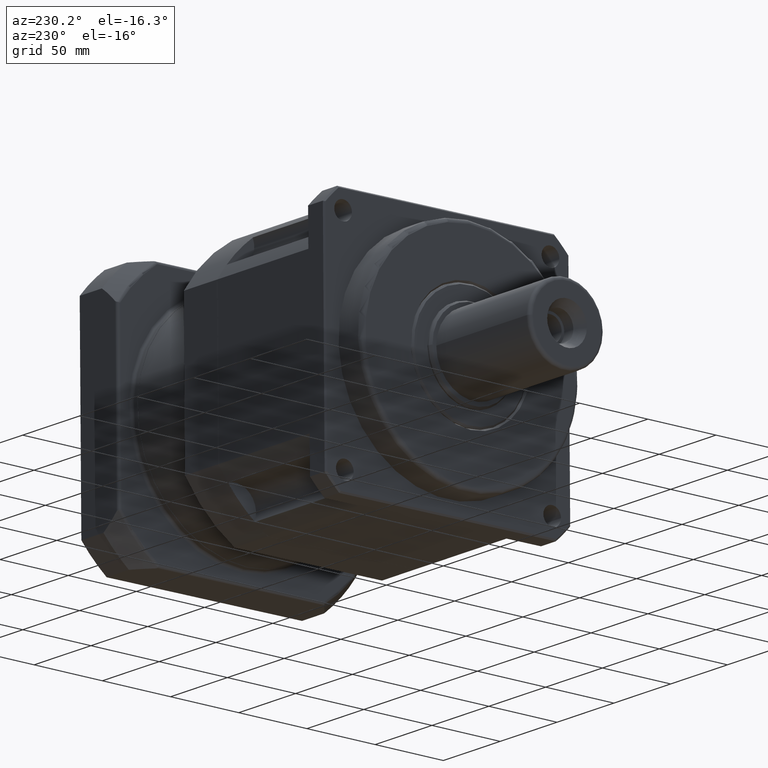
[diagram: clean part render]
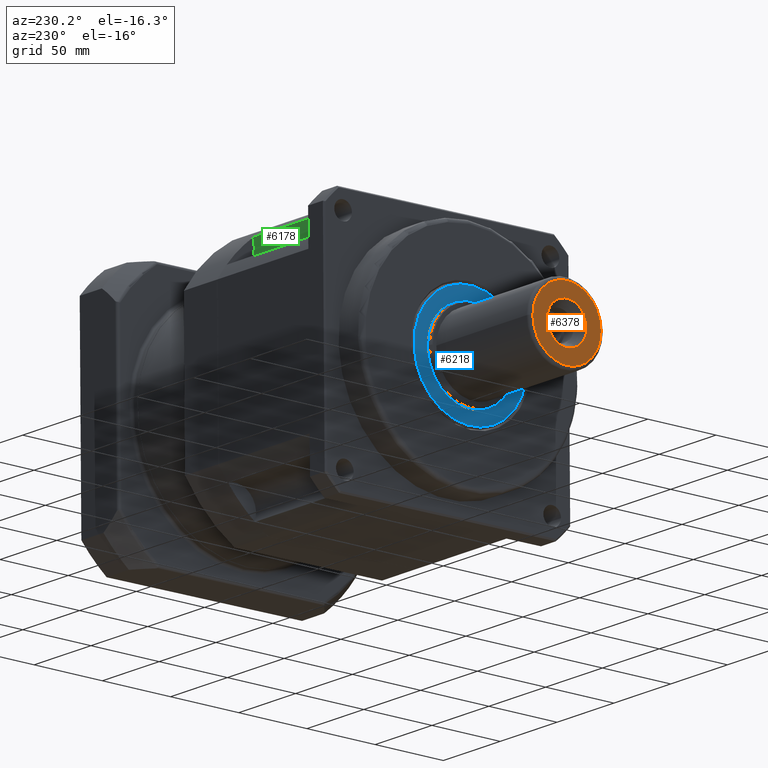
[diagram: same view with three faces highlighted in distinct colors, each labeled with its STEP entity id]
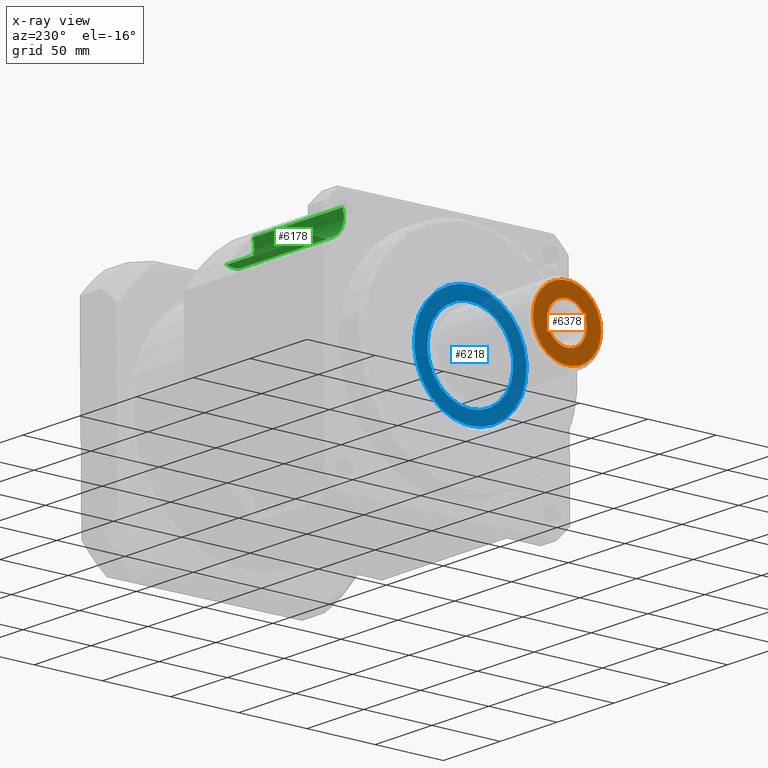
[diagram: x-ray of the same camera — body ghosted, the three highlighted faces saturated]
A machine part, auxiliary view with three faces highlighted in distinct colors.
The next image is the same camera in x-ray (body ghosted, the three faces saturated) — at least one of them is partly hidden behind the body in this view.
Their STEP definitions:

[orange] entity #6378 — the highlighted planar face has unit normal (-1, 0, 0).
#1075=PLANE('',#7129);
#1244=FACE_BOUND('',#2229,.T.);
#1654=FACE_OUTER_BOUND('',#2228,.T.);
#2228=EDGE_LOOP('',(#5524));
#2229=EDGE_LOOP('',(#5525));
#2602=CIRCLE('',#7116,14.5414518843274);
#2609=CIRCLE('',#7130,25.);
#3170=VERTEX_POINT('',#11329);
#3177=VERTEX_POINT('',#11350);
#3965=EDGE_CURVE('',#3170,#3170,#2602,.T.);
#3972=EDGE_CURVE('',#3177,#3177,#2609,.T.);
#5524=ORIENTED_EDGE('',*,*,#3972,.F.);
#5525=ORIENTED_EDGE('',*,*,#3965,.T.);
#6378=ADVANCED_FACE('',(#1654,#1244),#1075,.T.);
#7116=AXIS2_PLACEMENT_3D('',#11330,#8874,#8875);
#7129=AXIS2_PLACEMENT_3D('',#11349,#8900,#8901);
#7130=AXIS2_PLACEMENT_3D('',#11351,#8902,#8903);
#8874=DIRECTION('center_axis',(1.,-3.63673752035064E-47,-3.34871148441438E-16));
#8875=DIRECTION('ref_axis',(-3.34871148441438E-16,-2.64405559680501E-31,
-1.));
#8900=DIRECTION('center_axis',(-1.,3.63673752035064E-47,3.34871148441438E-16));
#8901=DIRECTION('ref_axis',(0.,0.,1.));
#8902=DIRECTION('center_axis',(1.,-3.63673752035064E-47,-3.34871148441438E-16));
#8903=DIRECTION('ref_axis',(6.15148320098408E-32,-1.,1.83697019872103E-16));
#11329=CARTESIAN_POINT('',(-264.697071512776,-138.894963504095,49.1925268064303));
#11330=CARTESIAN_POINT('Origin',(-264.697071512776,-153.436415388422,49.1925268064303));
#11349=CARTESIAN_POINT('Origin',(-264.697071512776,-125.936415388422,49.1925268064303));
#11350=CARTESIAN_POINT('',(-264.697071512776,-128.436415388422,49.1925268064303));
#11351=CARTESIAN_POINT('Origin',(-264.697071512776,-153.436415388422,49.1925268064303));

[blue] entity #6218 — the highlighted planar face has unit normal (-1, -0, 0).
#1000=PLANE('',#6847);
#1167=FACE_BOUND('',#1992,.T.);
#1494=FACE_OUTER_BOUND('',#1991,.T.);
#1991=EDGE_LOOP('',(#4928));
#1992=EDGE_LOOP('',(#4929));
#2487=CIRCLE('',#6848,41.3);
#2488=CIRCLE('',#6849,31.5);
#2978=VERTEX_POINT('',#10325);
#2979=VERTEX_POINT('',#10327);
#3687=EDGE_CURVE('',#2978,#2978,#2487,.T.);
#3688=EDGE_CURVE('',#2979,#2979,#2488,.T.);
#4928=ORIENTED_EDGE('',*,*,#3687,.F.);
#4929=ORIENTED_EDGE('',*,*,#3688,.T.);
#6218=ADVANCED_FACE('',(#1494,#1167),#1000,.T.);
#6847=AXIS2_PLACEMENT_3D('',#10324,#8238,#8239);
#6848=AXIS2_PLACEMENT_3D('',#10326,#8240,#8241);
#6849=AXIS2_PLACEMENT_3D('',#10328,#8242,#8243);
#8238=DIRECTION('center_axis',(-1.,-3.65928595145498E-16,5.37744503565102E-16));
#8239=DIRECTION('ref_axis',(0.,0.0595471144220795,0.998225496150045));
#8240=DIRECTION('center_axis',(1.,3.65928595145498E-16,-5.37744503565102E-16));
#8241=DIRECTION('ref_axis',(3.9730038692824E-16,-0.998225496150045,0.0595471144220797));
#8242=DIRECTION('center_axis',(1.,3.65928595145498E-16,-5.37744503565102E-16));
#8243=DIRECTION('ref_axis',(-5.15000281947794E-16,-0.0595471144220796,-0.998225496150045));
#10324=CARTESIAN_POINT('Origin',(-179.697071512776,-111.011831802045,46.6617744434918));
#10325=CARTESIAN_POINT('',(-179.697071512776,-112.209702397425,46.7332309807983));
#10326=CARTESIAN_POINT('Origin',(-179.697071512776,-153.436415388422,49.1925268064302));
#10327=CARTESIAN_POINT('',(-179.697071512776,-121.992312259696,47.3167927021347));
#10328=CARTESIAN_POINT('Origin',(-179.697071512776,-153.436415388422,49.1925268064302));

[green] entity #6178 — the highlighted cylindrical surface (edge-blend (fillet) strip) has radius 15 mm, axis along (-1, -0, 0).
#355=LINE('',#10041,#659);
#365=LINE('',#10108,#669);
#659=VECTOR('',#7978,79.);
#669=VECTOR('',#8046,79.);
#1454=FACE_OUTER_BOUND('',#1933,.T.);
#1933=EDGE_LOOP('',(#4758,#4759,#4760,#4761,#4762,#4763));
#2456=CIRCLE('',#6777,15.);
#2457=CIRCLE('',#6778,15.);
#2458=CIRCLE('',#6779,15.);
#2459=CIRCLE('',#6780,15.);
#2904=VERTEX_POINT('',#10039);
#2905=VERTEX_POINT('',#10040);
#2932=VERTEX_POINT('',#10106);
#2933=VERTEX_POINT('',#10107);
#2939=VERTEX_POINT('',#10129);
#2940=VERTEX_POINT('',#10131);
#3573=EDGE_CURVE('',#2904,#2905,#355,.T.);
#3605=EDGE_CURVE('',#2932,#2933,#365,.T.);
#3617=EDGE_CURVE('',#2904,#2933,#2456,.T.);
#3618=EDGE_CURVE('',#2939,#2932,#2457,.T.);
#3619=EDGE_CURVE('',#2940,#2939,#2458,.T.);
#3620=EDGE_CURVE('',#2905,#2940,#2459,.T.);
#4758=ORIENTED_EDGE('',*,*,#3573,.F.);
#4759=ORIENTED_EDGE('',*,*,#3617,.T.);
#4760=ORIENTED_EDGE('',*,*,#3605,.F.);
#4761=ORIENTED_EDGE('',*,*,#3618,.F.);
#4762=ORIENTED_EDGE('',*,*,#3619,.F.);
#4763=ORIENTED_EDGE('',*,*,#3620,.F.);
#5646=CYLINDRICAL_SURFACE('',#6776,15.);
#6178=ADVANCED_FACE('',(#1454),#5646,.F.);
#6776=AXIS2_PLACEMENT_3D('',#10127,#8073,#8074);
#6777=AXIS2_PLACEMENT_3D('',#10128,#8075,#8076);
#6778=AXIS2_PLACEMENT_3D('',#10130,#8077,#8078);
#6779=AXIS2_PLACEMENT_3D('',#10132,#8079,#8080);
#6780=AXIS2_PLACEMENT_3D('',#10133,#8081,#8082);
#7978=DIRECTION('',(1.,1.93538914479471E-16,-4.65376321555618E-16));
#8046=DIRECTION('',(-1.,-1.93538914479471E-16,4.65376321555618E-16));
#8073=DIRECTION('center_axis',(-1.,-1.93538914479471E-16,4.65376321555618E-16));
#8074=DIRECTION('ref_axis',(-1.97448203049254E-16,0.999964593271464,-0.00841499871866819));
#8075=DIRECTION('center_axis',(-1.,-1.93538914479471E-16,4.65376321555618E-16));
#8076=DIRECTION('ref_axis',(-1.97448203049254E-16,0.999964593271464,-0.00841499871866819));
#8077=DIRECTION('center_axis',(-1.,-1.93538914479471E-16,4.65376321555618E-16));
#8078=DIRECTION('ref_axis',(-1.97448203049254E-16,0.999964593271464,-0.00841499871866819));
#8079=DIRECTION('center_axis',(-1.,-1.93538914479471E-16,4.65376321555618E-16));
#8080=DIRECTION('ref_axis',(-1.97448203049254E-16,0.999964593271464,-0.00841499871866819));
#8081=DIRECTION('center_axis',(-1.,-1.93538914479471E-16,4.65376321555618E-16));
#8082=DIRECTION('ref_axis',(-1.97448203049254E-16,0.999964593271464,-0.00841499871866819));
#10039=CARTESIAN_POINT('',(-144.697071512777,-69.549729723365,112.343330191121));
#10040=CARTESIAN_POINT('',(-65.6970715127766,-69.549729723365,112.343330191121));
#10041=CARTESIAN_POINT('',(-65.6970715127766,-69.5497297233649,112.343330191121));
#10106=CARTESIAN_POINT('',(-65.6970715127765,-88.882792981703,132.004541841513));
#10107=CARTESIAN_POINT('',(-144.697071512777,-88.8827929817031,132.004541841513));
#10108=CARTESIAN_POINT('',(-65.6970715127765,-88.8827929817031,132.004541841513));
#10127=CARTESIAN_POINT('Origin',(-65.6970715127765,-75.0028901627238,126.316985447446));
#10128=CARTESIAN_POINT('Origin',(-144.697071512777,-75.0028901627238,126.316985447446));
#10129=CARTESIAN_POINT('',(-65.6970715127766,-88.9218772002033,131.908210702297));
#10130=CARTESIAN_POINT('Origin',(-65.6970715127765,-75.0028901627238,126.316985447446));
#10131=CARTESIAN_POINT('',(-65.6970715127766,-69.6467049837479,112.305872703323));
#10132=CARTESIAN_POINT('Origin',(-65.6970715127765,-75.0028901627238,126.316985447446));
#10133=CARTESIAN_POINT('Origin',(-65.6970715127765,-75.0028901627238,126.316985447446));